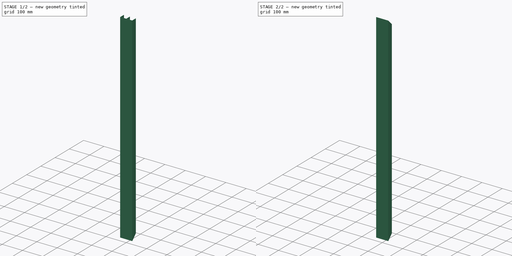
[diagram: build sequence overview — one tinted view per stage of 2, left to right]
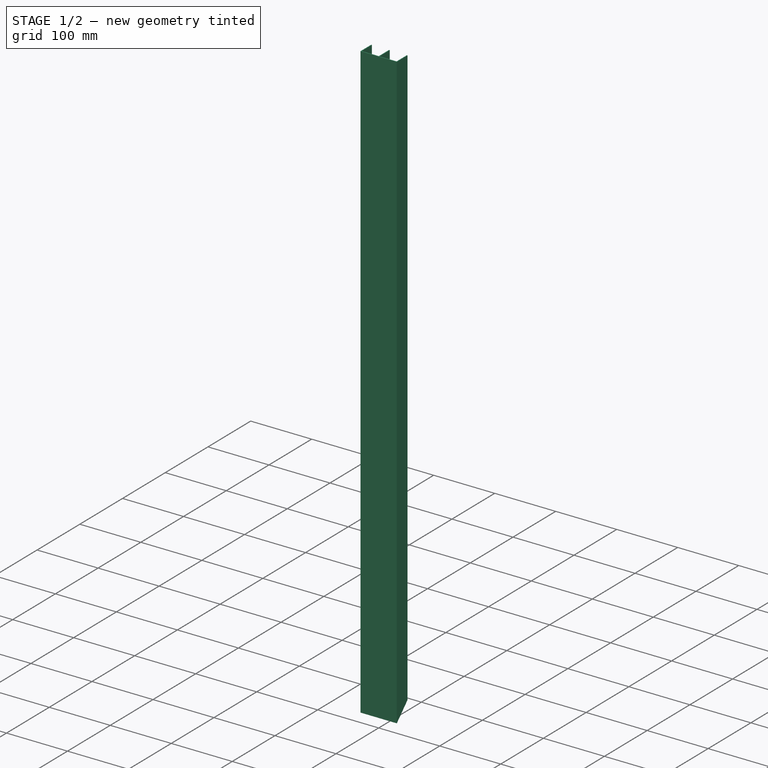
[diagram: stage 1 of 2 — iso view after this stage's code; geometry added in this stage tinted green]
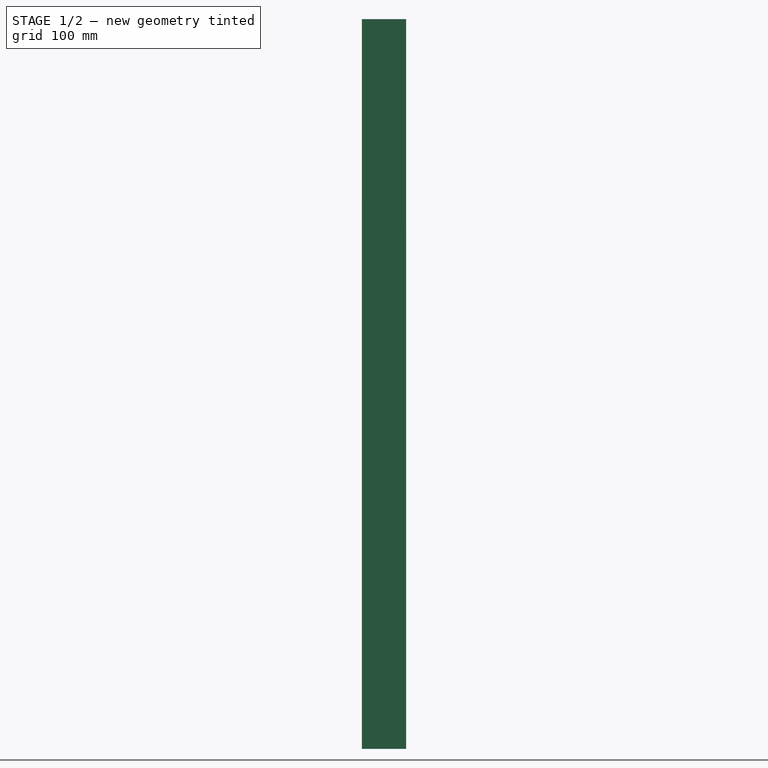
[diagram: stage 1 of 2 — front view after this stage's code; geometry added in this stage tinted green]
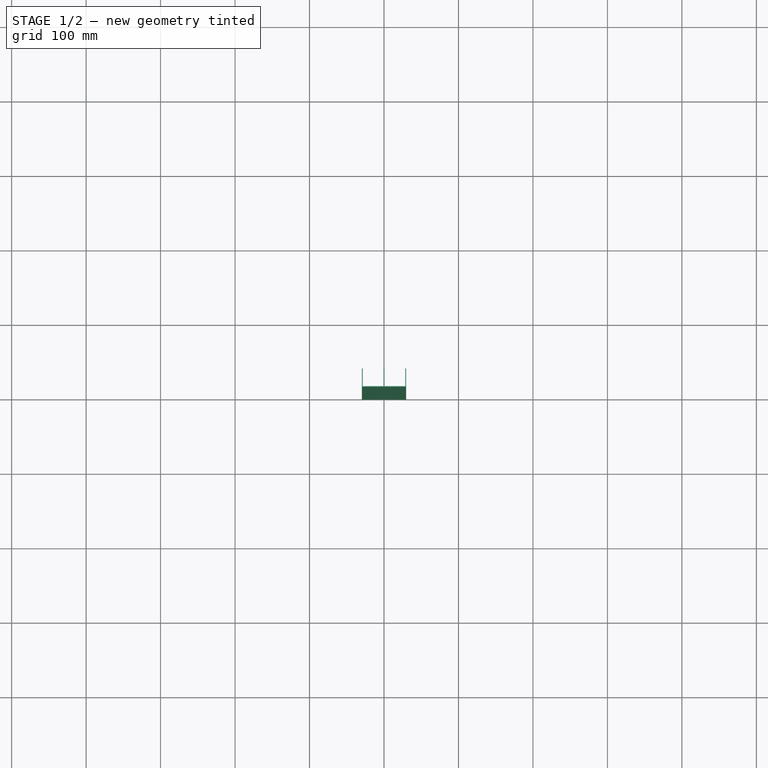
[diagram: stage 1 of 2 — top view after this stage's code; geometry added in this stage tinted green]
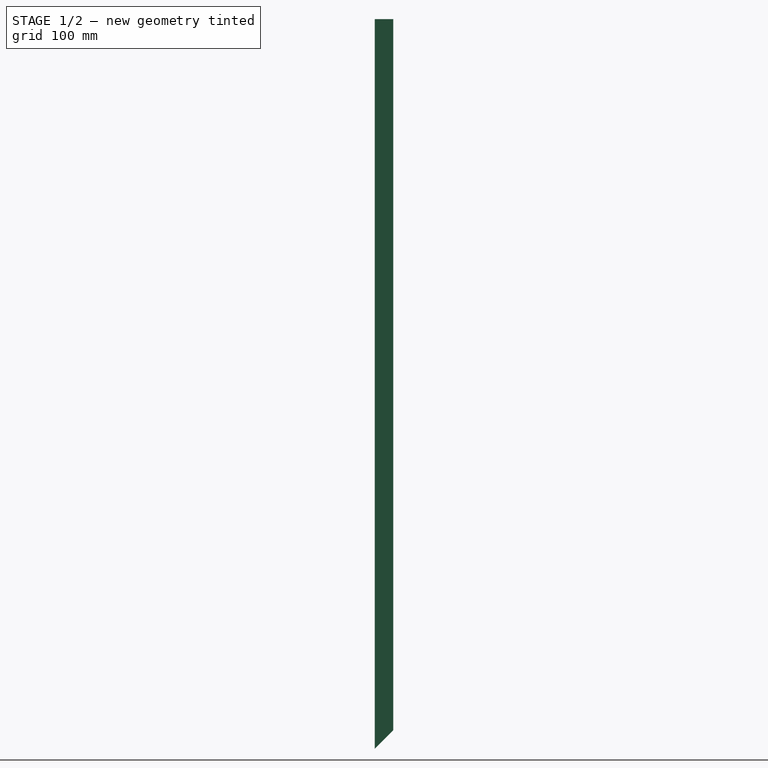
[diagram: stage 1 of 2 — right view after this stage's code; geometry added in this stage tinted green]
FCSTD DOCUMENT  (FreeCAD 0.21R33694 (Git))
Label: FrameRail_H
License: All rights reserved
LicenseURL: http://en.wikipedia.org/wiki/All_rights_reserved
objects: Sketcher::SketchObject×3, PartDesign::Pocket×2, PartDesign::Pad×1, Spreadsheet::Sheet×1, PartDesign::Body×1
note: 10 computed .brp shape members not serialized (recipe doc carries the construction recipe); baked Part::Feature solids carry a one-line shape summary decoded from their .brp

FEATURE [Sketcher::SketchObject] Sketch
  FullyConstrained = true
  MapMode = 5
  Support = -> [XY_Plane]
  expr: Constraints[24] = <<Params>>.width
  expr: Constraints[25] = <<Params>>.gap
  expr: Constraints[26] = <<Params>>.gap
  expr: Constraints[27] = <<Params>>.heigth
  expr: Constraints[30] = <<Params>>.thickness
  expr: Constraints[32] = <<Params>>.thickness
  sketch-geometry (12):
    g0: LineSegment StartX=-29.75 StartY=25 StartZ=0 EndX=-29.75 EndY=0 EndZ=0
    g1: LineSegment StartX=-29.75 StartY=0 StartZ=0 EndX=29.75 EndY=-1e-16 EndZ=0
    g2: LineSegment StartX=29.75 StartY=-1e-16 StartZ=0 EndX=29.75 EndY=25 EndZ=0
    g3: LineSegment StartX=29.75 StartY=25 StartZ=0 EndX=28.5833 EndY=25 EndZ=0
    g4: LineSegment StartX=28.5833 StartY=25 StartZ=0 EndX=28.5833 EndY=1.16667 EndZ=0
    g5: LineSegment StartX=28.5833 StartY=1.16667 StartZ=0 EndX=0.583333 EndY=1.16667 EndZ=0
    g6: LineSegment StartX=0.583333 StartY=1.16667 StartZ=0 EndX=0.583333 EndY=25 EndZ=0
    g7: LineSegment StartX=0.583333 StartY=25 StartZ=0 EndX=-0.583333 EndY=25 EndZ=0
    g8: LineSegment StartX=-0.583333 StartY=25 StartZ=0 EndX=-0.583333 EndY=1.16667 EndZ=0
    g9: LineSegment StartX=-0.583333 StartY=1.16667 StartZ=0 EndX=-28.5833 EndY=1.16667 EndZ=0
    g10: LineSegment StartX=-28.5833 StartY=1.16667 StartZ=0 EndX=-28.5833 EndY=25 EndZ=0
    g11: LineSegment StartX=-28.5833 StartY=25 StartZ=0 EndX=-29.75 EndY=25 EndZ=0
  constraints (35):
    c: PointOnObject(g0,g-1)
    c: Vertical(g0)
    c: Coincident(g1,g0)
    c: Vertical(g2)
    c: Horizontal(g3)
    c: Vertical(g4)
    c: Horizontal(g5)
    c: Vertical(g6)
    c: Vertical(g8)
    c: Horizontal(g9)
    c: Vertical(g10)
    c: Coincident(g11,g0)
    c: Coincident(g6,g7)
    c: Coincident(g4,g5)
    c: Coincident(g5,g6)
    c: Coincident(g4,g3)
    c: Coincident(g2,g3)
    c: Coincident(g1,g2)
    c: Coincident(g9,g10)
    c: Coincident(g9,g8)
    c: Coincident(g8,g7)
    c: Coincident(g11,g10)
    c: Horizontal(g11)
    c: Horizontal(g7)
    c: DistanceX(g0,g1) = 59.5
    c: DistanceX(g9,g8) = 28
    c: DistanceX(g5,g4) = 28
    c: DistanceY(g0,g0) = 25
    c: Horizontal(g0,g7)
    c: Horizontal(g7,g3)
    c: DistanceY(g1,g4) = 1.16667
    c: Horizontal(g8,g5)
    c: DistanceX(g0,g10) = 1.16667
    c: Equal(g11,g3)
    c: Symmetric(g0,g1,g-2)
FEATURE [PartDesign::Pad] Pad  label="Extrusion"
  Direction = (0,0,1)
  Length = 980
  Length2 = 10
  Profile = -> Sketch
  ReferenceAxis = -> Sketch [N_Axis]
  Type = 0
  expr: Length = <<Params>>.length
FEATURE [Spreadsheet::Sheet] Spreadsheet  label="Params"
  cells = A1='length; B1(length)=980; A2='width; B2(width)=59.5; A3='heigth; B3(heigth)=25; A4='gap; B4(gap)=28; A5='thickness; B5(thickness)==(B2 - 2 * B4) / 3
FEATURE [Sketcher::SketchObject] Sketch001
  ExternalGeometry = -> [Pad]
  FullyConstrained = true
  MapMode = 5
  Placement = pos=(29.75,0,0) rot=(0.57735,0.57735,0.57735;2.0944rad)
  Support = -> [Pad]
  sketch-geometry (3):
    g0: LineSegment StartX=0 StartY=0 StartZ=0 EndX=25 EndY=25 EndZ=0
    g1: LineSegment StartX=25 StartY=25 StartZ=0 EndX=25 EndY=0 EndZ=0
    g2: LineSegment StartX=25 StartY=0 StartZ=0 EndX=0 EndY=0 EndZ=0
  constraints (7):
    c: Coincident(g-1,g0)
    c: PointOnObject(g0,g-3)
    c: Coincident(g0,g1)
    c: Coincident(g1,g-3)
    c: Coincident(g1,g2)
    c: Coincident(g2,g0)
    c: Angle(g-1,g0) = 0.785398
FEATURE [PartDesign::Pocket] Pocket
  BaseFeature = -> Pad
  Direction = (-1,0,0)
  Length = 5
  Length2 = 5
  Profile = -> Sketch001
  ReferenceAxis = -> Sketch001 [N_Axis]
  Type = 1
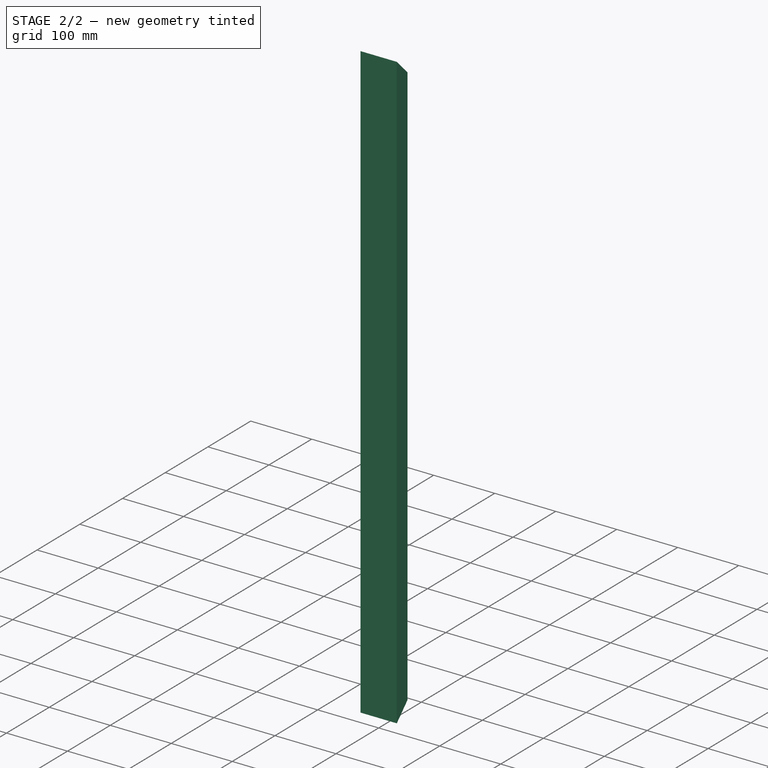
[diagram: stage 2 of 2 — iso view after this stage's code; geometry added in this stage tinted green]
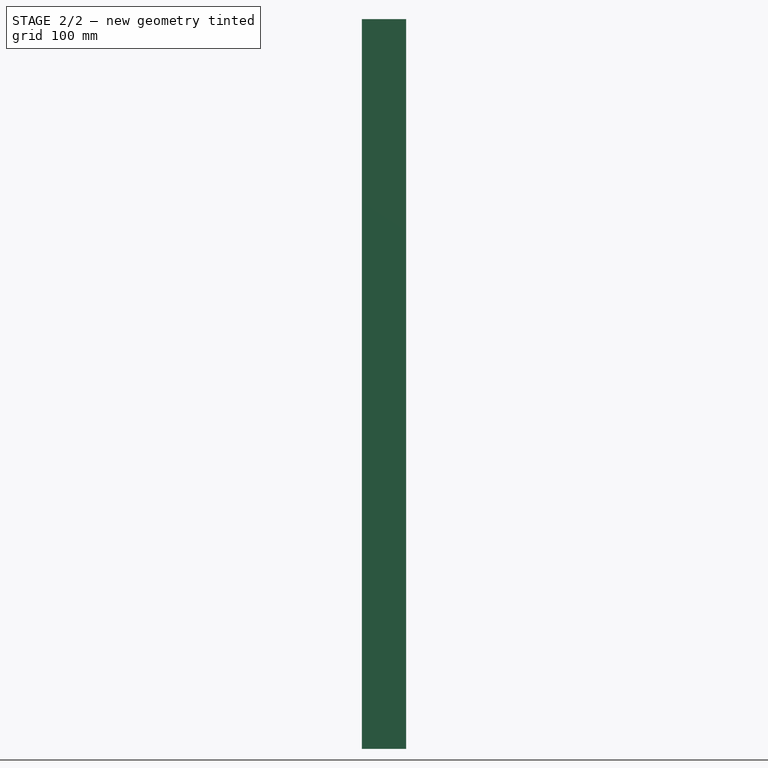
[diagram: stage 2 of 2 — front view after this stage's code; geometry added in this stage tinted green]
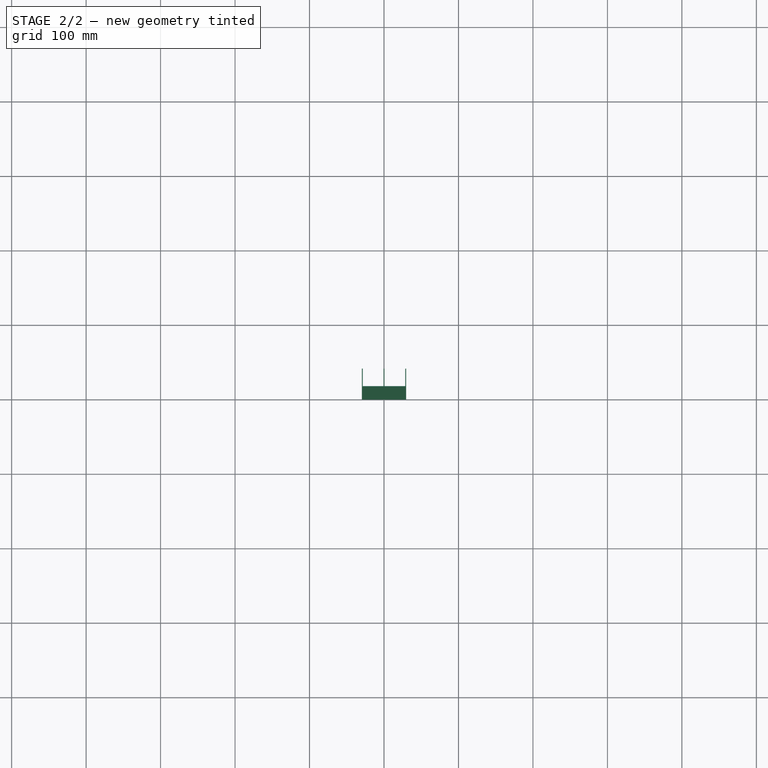
[diagram: stage 2 of 2 — top view after this stage's code; geometry added in this stage tinted green]
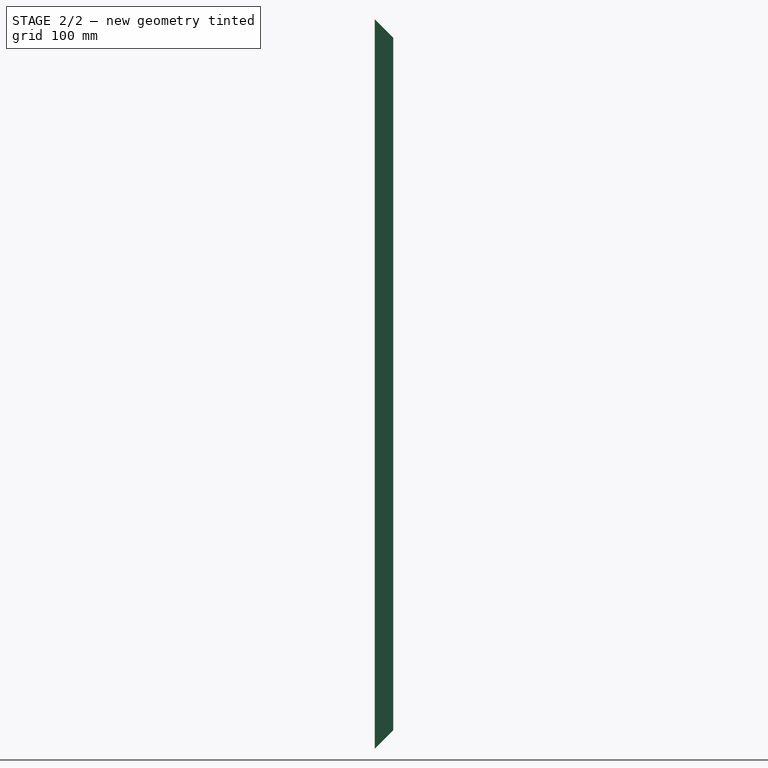
[diagram: stage 2 of 2 — right view after this stage's code; geometry added in this stage tinted green]
FEATURE [Sketcher::SketchObject] Sketch002
  ExternalGeometry = -> [Pocket]
  FullyConstrained = true
  MapMode = 5
  Placement = pos=(29.75,0,0) rot=(0.57735,0.57735,0.57735;2.0944rad)
  Support = -> [Pocket]
  sketch-geometry (3):
    g0: LineSegment StartX=-1e-16 StartY=980 StartZ=0 EndX=25 EndY=955 EndZ=0
    g1: LineSegment StartX=25 StartY=955 StartZ=0 EndX=25 EndY=980 EndZ=0
    g2: LineSegment StartX=25 StartY=980 StartZ=0 EndX=0 EndY=980 EndZ=0
  constraints (7):
    c: Coincident(g-3,g0)
    c: PointOnObject(g0,g-4)
    c: Coincident(g0,g1)
    c: Coincident(g1,g-4)
    c: Coincident(g1,g2)
    c: Coincident(g2,g0)
    c: Angle(g-2,g0) = 0.785398
FEATURE [PartDesign::Pocket] Pocket001
  BaseFeature = -> Pocket
  Direction = (-1,0,0)
  Length = 5
  Length2 = 5
  Profile = -> Sketch002
  ReferenceAxis = -> Sketch002 [N_Axis]
  Type = 1
FEATURE [PartDesign::Body] Body
  Group = -> [Sketch,Pad,Sketch001,Pocket,Sketch002,Pocket001]
  Origin = -> Origin
  Tip = -> Pocket001
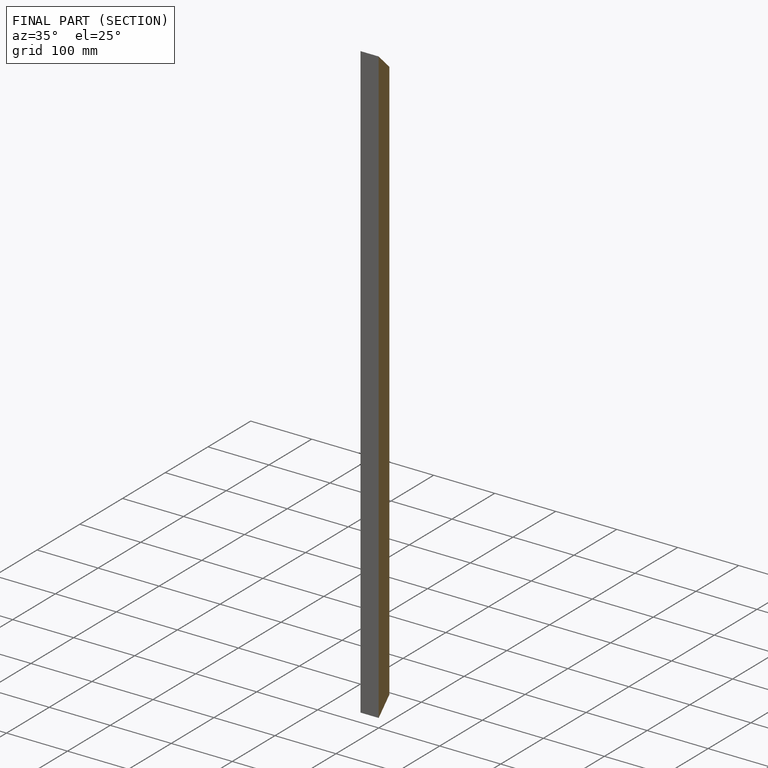
[diagram: finished part — half-section view (interior)]
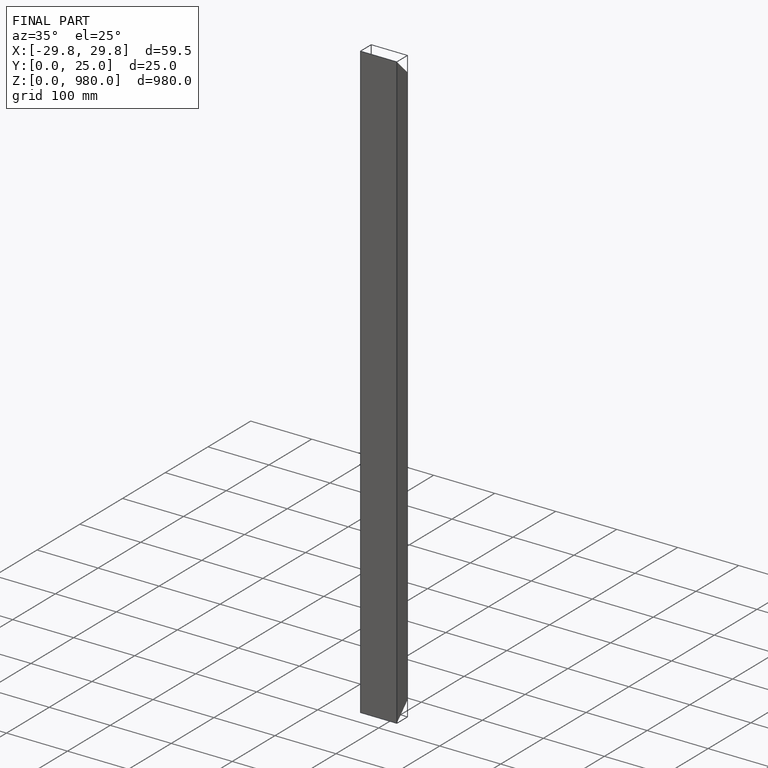
[diagram: finished part — iso view with bounding-box wireframe]
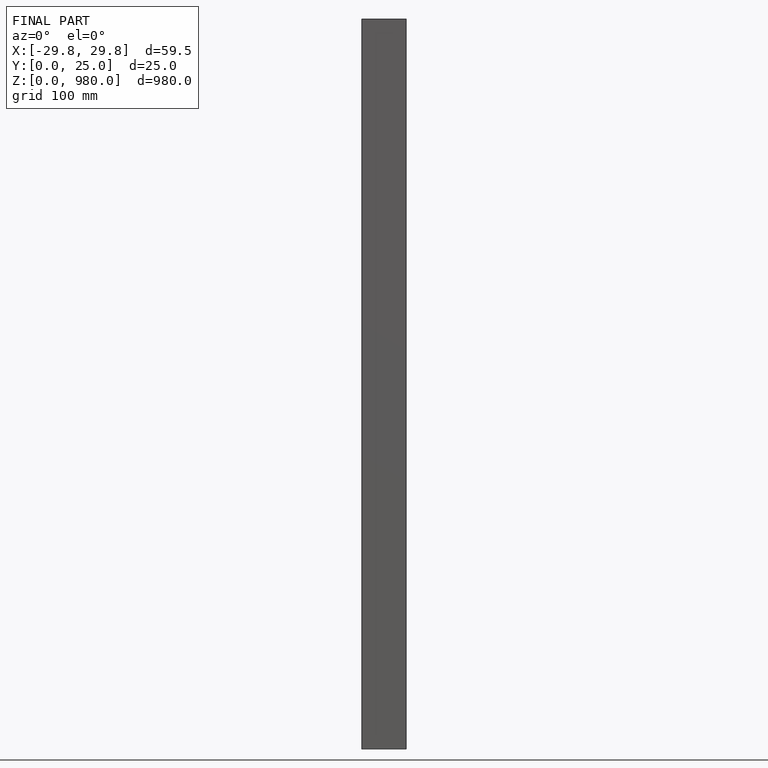
[diagram: finished part — front view with bounding-box wireframe]
